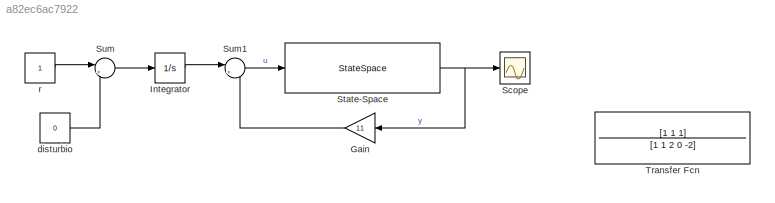
MODEL slx_a82ec6ac7922
KIND model
CONFIG AbsTol = auto
CONFIG EnableMultiTasking = off
CONFIG FixedStep = auto
CONFIG MaxStep = auto
CONFIG MinStep = auto
CONFIG RelTol = 1e-3
CONFIG SampleTimeConstraint = Unconstrained
CONFIG SolverName = VariableStepAuto
CONFIG StartTime = 0.0
CONFIG StopTime = 10.0
BLOCK [Gain] Gain
  Gain = 11
  Multiplication = Matrix(K*u)
  NameLocation = top
BLOCK [Integrator] Integrator
  Ports = [1, 1]
BLOCK [Scope] Scope
  Floating = off
  NumInputPorts = 1
  Ports = [1]
  ScopeSpecificationString = Simulink.scopes.TimeScopeBlockCfg('CurrentConfiguration', extmgr.ConfigurationSet(extmgr.Configuration('Core','General UI',true),extmgr.Configuration('Core','Source UI',true),extmgr.Configuration('Sources','WiredSimulink',true),extmgr.Configuration('Visuals','Time Domain',true,'SerializedDisplays',{struct('MinYLimReal','-0.00153','MaxYLimReal','0.01183','YLabelReal','','MinYLimMag','0.00000','MaxY...<+1385ch>
BLOCK [StateSpace] State-Space
  A = [ -12.0000  184.0000   64.0000  256.0000;1 0 0 0;0 1 0 0; -1 -1 -1 0]
  B = [1;0;0;0]
  C = [1 1 1 0]
  D = 0
  InitialCondition = 0
  Ports = [1, 1]
BLOCK [Sum] Sum
  Inputs = |++
  Ports = [2, 1]
BLOCK [Sum] Sum1
  Inputs = |+-
  Ports = [2, 1]
BLOCK [TransferFcn] Transfer Fcn
  Denominator = [1 1 2 0 -2]
  Numerator = [1 1 1]
BLOCK [Constant] disturbio
  Value = 0
BLOCK [Constant] r
LINE Gain:1 -> Sum1:2
LINE Integrator:1 -> Sum1:1
NET State-Space:1 -> Gain:1, Scope:1
LINE Sum1:1 -> State-Space:1
LINE Sum:1 -> Integrator:1
LINE disturbio:1 -> Sum:2
LINE r:1 -> Sum:1
note: NET lines group one-source signal fan-out (src -> all destinations, sorted); 1:1 wires keep LINE
